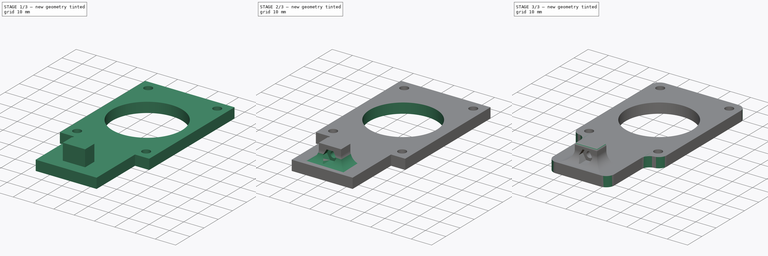
[diagram: build sequence overview — one tinted view per stage of 3, left to right]
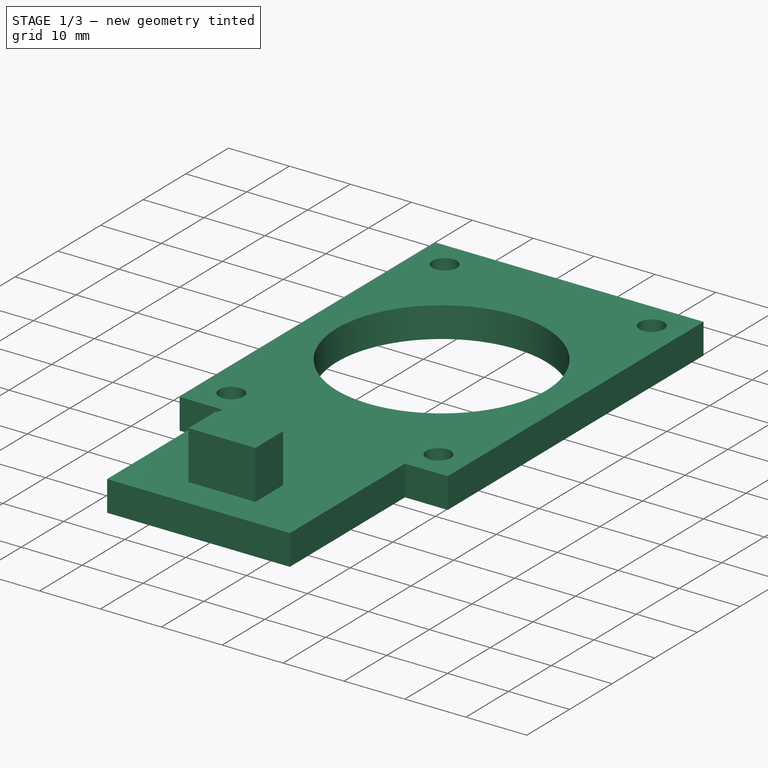
[diagram: stage 1 of 3 — iso view after this stage's code; geometry added in this stage tinted green]
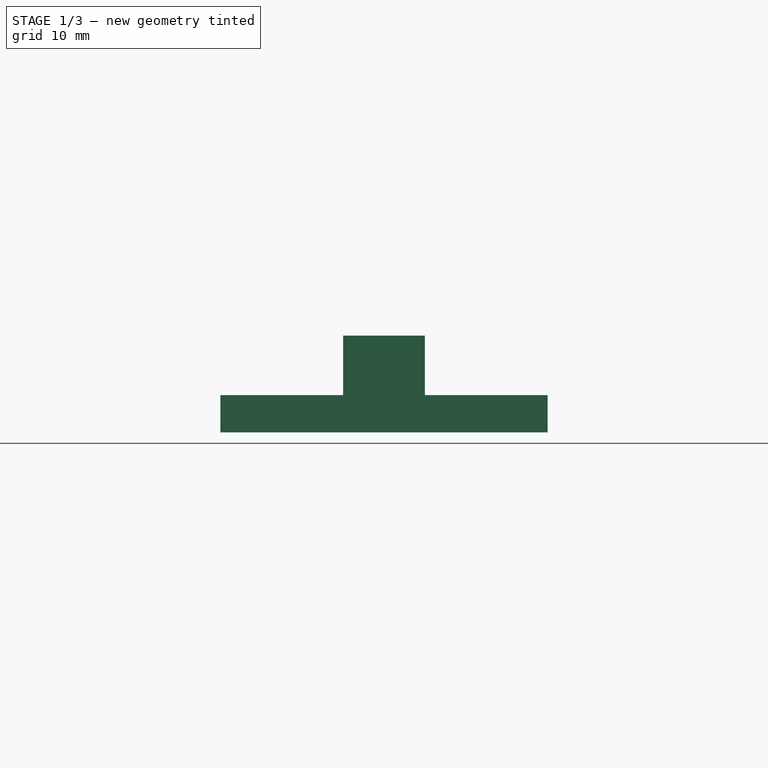
[diagram: stage 1 of 3 — front view after this stage's code; geometry added in this stage tinted green]
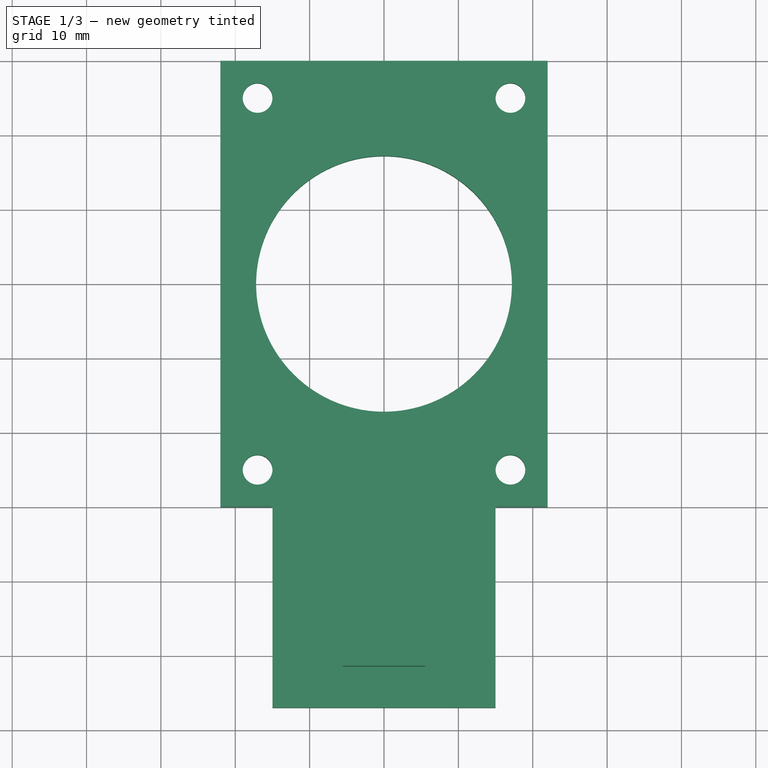
[diagram: stage 1 of 3 — top view after this stage's code; geometry added in this stage tinted green]
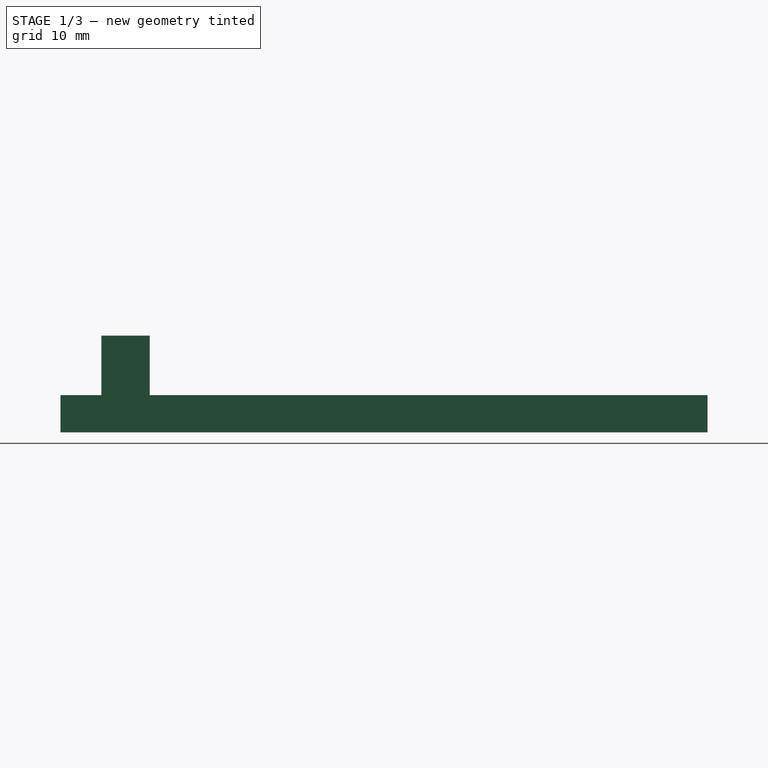
[diagram: stage 1 of 3 — right view after this stage's code; geometry added in this stage tinted green]
FCSTD DOCUMENT  (FreeCAD 0.14R3700 (Git))
Label: homing_sensor_holder
License: CC-BY 3.0
LicenseURL: http://creativecommons.org/licenses/by/3.0/
objects: Sketcher::SketchObject×4, PartDesign::Fillet×4, PartDesign::Pad×2, PartDesign::Pocket×2
note: 16 computed .brp shape members not serialized (recipe doc carries the construction recipe); baked Part::Feature solids carry a one-line shape summary decoded from their .brp

FEATURE [Sketcher::SketchObject] Sketch
  sketch-geometry (13):
    g0: LineSegment StartX=-22 StartY=30 StartZ=0 EndX=22 EndY=30 EndZ=0
    g1: LineSegment StartX=22 StartY=30 StartZ=0 EndX=22 EndY=-30 EndZ=0
    g2: LineSegment StartX=22 StartY=-30 StartZ=0 EndX=15 EndY=-30 EndZ=0
    g3: LineSegment StartX=15 StartY=-30 StartZ=0 EndX=15 EndY=-57 EndZ=0
    g4: LineSegment StartX=15 StartY=-57 StartZ=0 EndX=-15 EndY=-57 EndZ=0
    g5: LineSegment StartX=-15 StartY=-57 StartZ=0 EndX=-15 EndY=-30 EndZ=0
    g6: LineSegment StartX=-15 StartY=-30 StartZ=0 EndX=-22 EndY=-30 EndZ=0
    g7: LineSegment StartX=-22 StartY=-30 StartZ=0 EndX=-22 EndY=30 EndZ=0
    g8: Circle CenterX=0 CenterY=0 CenterZ=0 NormalX=0 NormalY=0 NormalZ=1 Radius=17.2
    g9: Circle CenterX=-17 CenterY=25 CenterZ=0 NormalX=0 NormalY=0 NormalZ=1 Radius=2
    g10: Circle CenterX=17 CenterY=25 CenterZ=0 NormalX=0 NormalY=0 NormalZ=1 Radius=2
    g11: Circle CenterX=-17 CenterY=-25 CenterZ=0 NormalX=0 NormalY=0 NormalZ=1 Radius=2
    g12: Circle CenterX=17 CenterY=-25 CenterZ=0 NormalX=0 NormalY=0 NormalZ=1 Radius=2
  constraints (35):
    c: Horizontal(g0)
    c: Coincident(g0,g1)
    c: Vertical(g1)
    c: Coincident(g1,g2)
    c: Horizontal(g2)
    c: Coincident(g2,g3)
    c: Vertical(g3)
    c: Coincident(g3,g4)
    c: Horizontal(g4)
    c: Coincident(g4,g5)
    c: Vertical(g5)
    c: Coincident(g5,g6)
    c: Horizontal(g6)
    c: Coincident(g6,g7)
    c: Coincident(g7,g0)
    c: Vertical(g7)
    c: Coincident(g8,g-1)
    c: Radius(g8) = 17.2
    c: Equal(g9,g10)
    c: Equal(g10,g11)
    c: Equal(g11,g12)
    c: Radius(g9) = 2
    c: Distance(g9,g10) = 34
    c: Symmetric(g10,g9,g-2)
    c: Distance(g10,g12) = 50
    c: Symmetric(g10,g12,g-1)
    c: Symmetric(g11,g12,g-2)
    c: DistanceY(g-1,g0) = 30
    c: DistanceY(g-1,g6) = -30
    c: Distance(g0) = 44
    c: Symmetric(g0,g0,g-2)
    c: Symmetric(g4,g3,g-2)
    c: Distance(g4) = 30
    c: DistanceY(g-1,g3) = -57
    c: Symmetric(g2,g5,g-2)
FEATURE [PartDesign::Pad] Pad
  Length = 5
  Length2 = 100
  Sketch = -> Sketch
  Type = 0
FEATURE [Sketcher::SketchObject] Sketch001
  Placement = pos=(0,0,5) rot=(0,0,1;0rad)
  Support = -> Pad [Face15]
  sketch-geometry (4):
    g0: LineSegment StartX=-5.5 StartY=-45 StartZ=0 EndX=5.5 EndY=-45 EndZ=0
    g1: LineSegment StartX=5.5 StartY=-45 StartZ=0 EndX=5.5 EndY=-51.5 EndZ=0
    g2: LineSegment StartX=5.5 StartY=-51.5 StartZ=0 EndX=-5.5 EndY=-51.5 EndZ=0
    g3: LineSegment StartX=-5.5 StartY=-51.5 StartZ=0 EndX=-5.5 EndY=-45 EndZ=0
  constraints (12):
    c: Coincident(g0,g1)
    c: Coincident(g1,g2)
    c: Coincident(g2,g3)
    c: Coincident(g3,g0)
    c: Horizontal(g0)
    c: Horizontal(g2)
    c: Vertical(g1)
    c: Vertical(g3)
    c: Distance(g3) = 6.5
    c: Distance(g0) = 11
    c: Symmetric(g0,g0,g-2)
    c: DistanceY(g-1,g0) = -45
FEATURE [PartDesign::Pad] Pad001
  Length = 8
  Length2 = 100
  Sketch = -> Sketch001
  Type = 0
FEATURE [Sketcher::SketchObject] Sketch002  label="M3HoleSk"
  Placement = pos=(-5.5,0,0) rot=(0.57735,-0.57735,-0.57735;2.0944rad)
  Support = -> Pad001 [Face16]
  sketch-geometry (1):
    g0: Circle CenterX=0 CenterY=8.2 CenterZ=0 NormalX=0 NormalY=0 NormalZ=1 Radius=1.5
  constraints (3):
    c: PointOnObject(g0,g-2)
    c: DistanceY(g-1,g0) = 8.2
    c: Radius(g0) = 1.5
FEATURE [PartDesign::Pocket] Pocket  label="M3HolePocket"
  Length = 5
  Sketch = -> Sketch002
  Type = 1
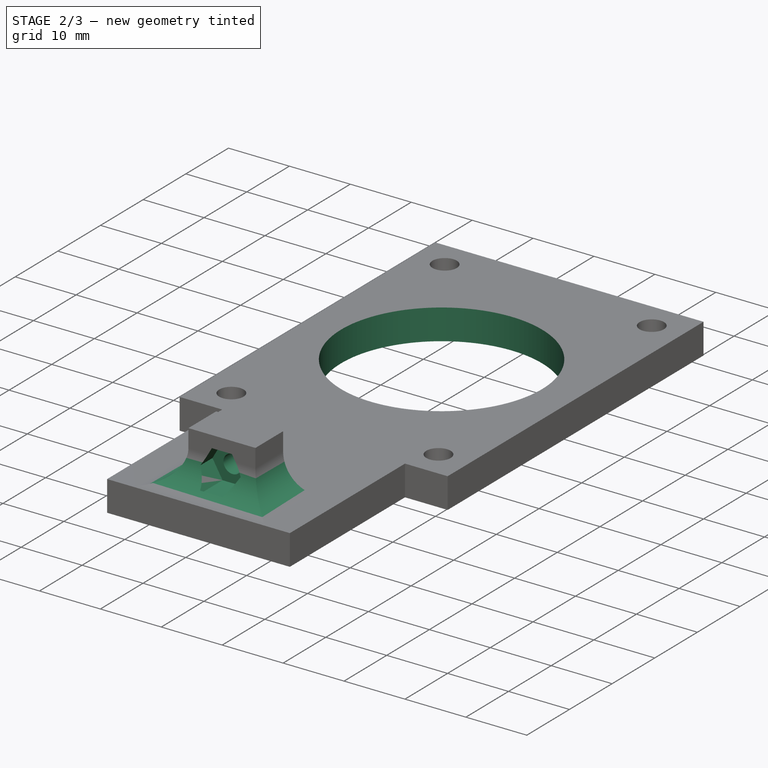
[diagram: stage 2 of 3 — iso view after this stage's code; geometry added in this stage tinted green]
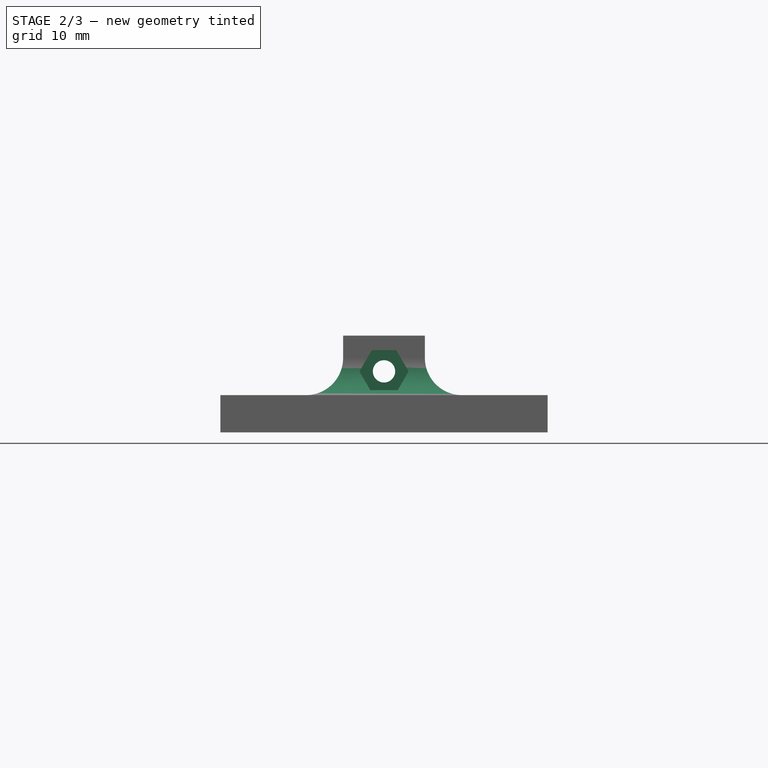
[diagram: stage 2 of 3 — front view after this stage's code; geometry added in this stage tinted green]
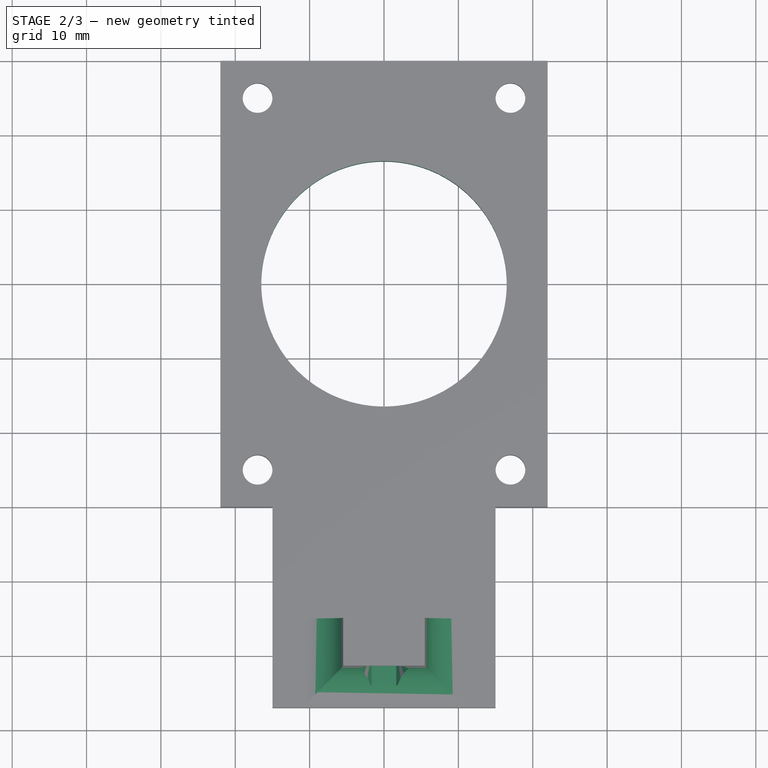
[diagram: stage 2 of 3 — top view after this stage's code; geometry added in this stage tinted green]
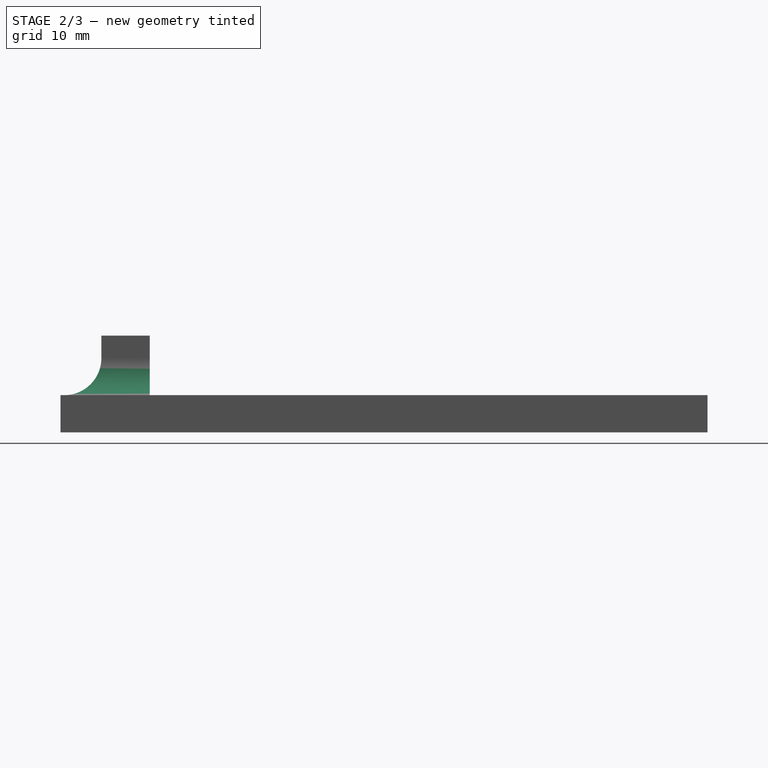
[diagram: stage 2 of 3 — right view after this stage's code; geometry added in this stage tinted green]
FEATURE [PartDesign::Fillet] Fillet
  Base = -> Pocket [Edge31,Edge30,Edge32]
  Radius = 5
FEATURE [Sketcher::SketchObject] Sketch003  label="M3NutSk"
  Placement = pos=(0,-51.5,0) rot=(1,0,0;1.5708rad)
  Support = -> Fillet [Face23]
  sketch-geometry (7):
    g0: LineSegment StartX=3.3 StartY=8.2 StartZ=0 EndX=1.65 EndY=11.0579 EndZ=0
    g1: LineSegment StartX=1.65 StartY=11.0579 StartZ=0 EndX=-1.65 EndY=11.0579 EndZ=0
    g2: LineSegment StartX=-1.65 StartY=11.0579 StartZ=0 EndX=-3.3 EndY=8.2 EndZ=0
    g3: LineSegment StartX=-3.3 StartY=8.2 StartZ=0 EndX=-1.65 EndY=5.34212 EndZ=0
    g4: LineSegment StartX=-1.65 StartY=5.34212 StartZ=0 EndX=1.65 EndY=5.34212 EndZ=0
    g5: LineSegment StartX=1.65 StartY=5.34212 StartZ=0 EndX=3.3 EndY=8.2 EndZ=0
    g6: Circle [constr] CenterX=0 CenterY=8.2 CenterZ=0 NormalX=0 NormalY=0 NormalZ=1 Radius=3.3
  constraints (18):
    c: Coincident(g0,g1)
    c: Coincident(g1,g2)
    c: Coincident(g2,g3)
    c: Coincident(g3,g4)
    c: Coincident(g4,g5)
    c: Coincident(g5,g0)
    c: Equal(g0, g1-g5) x5
    c: PointOnObject(g0,g6)
    c: PointOnObject(g1,g6)
    c: PointOnObject(g2,g6)
    c: PointOnObject(g3,g6)
    c: PointOnObject(g4,g6)
    c: PointOnObject(g5,g6)
    c: PointOnObject(g3,g-2)
    c: Perpendicular(g-2,g1)
    c: Radius(g6) = 3.3
    c: PointOnObject(g6,g-2)
    c: DistanceY(g-1,g6) = 8.2
FEATURE [PartDesign::Pocket] Pocket001
  Length = 5
  Midplane = true
  Sketch = -> Sketch003
  Type = 0
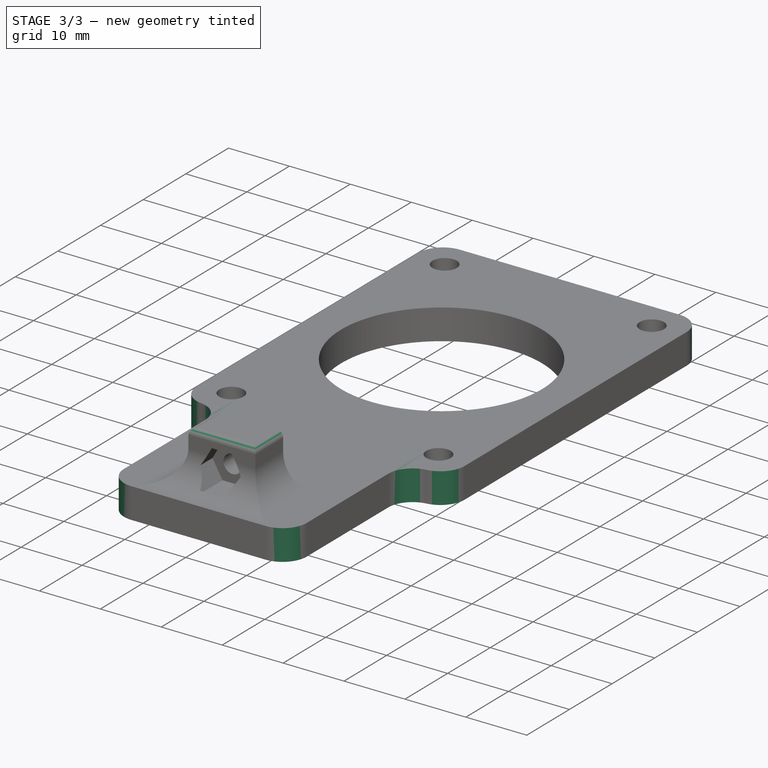
[diagram: stage 3 of 3 — iso view after this stage's code; geometry added in this stage tinted green]
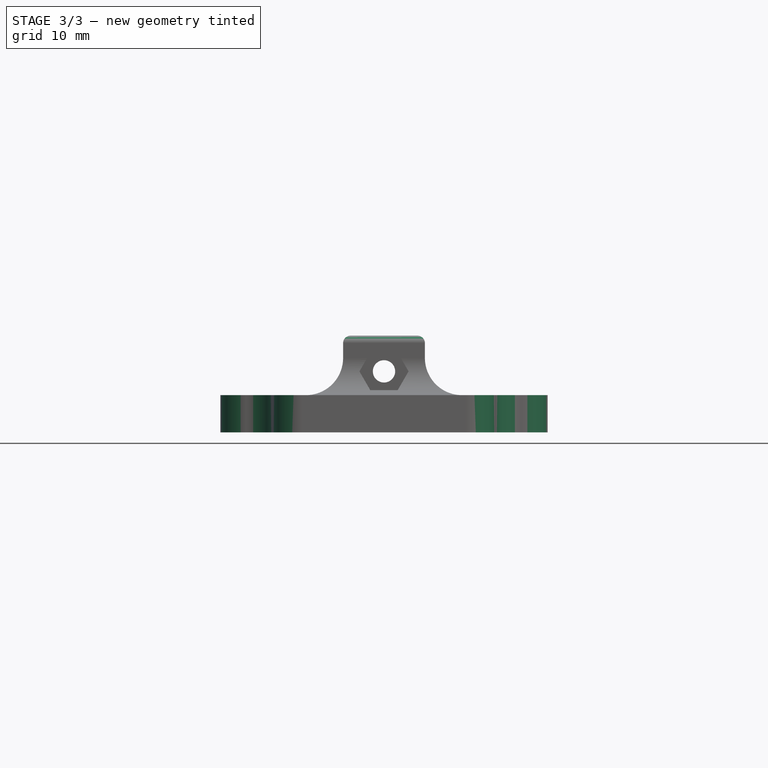
[diagram: stage 3 of 3 — front view after this stage's code; geometry added in this stage tinted green]
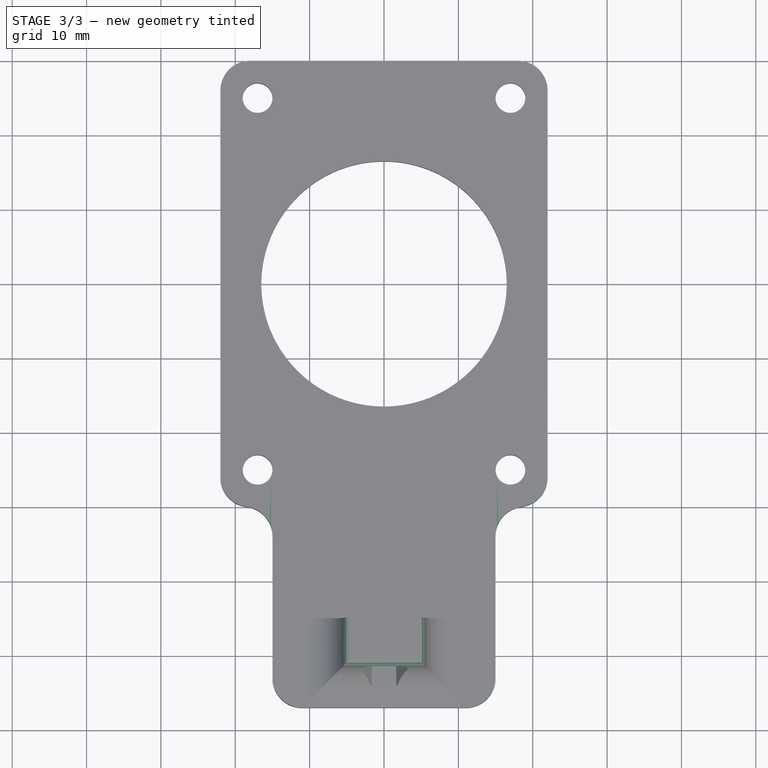
[diagram: stage 3 of 3 — top view after this stage's code; geometry added in this stage tinted green]
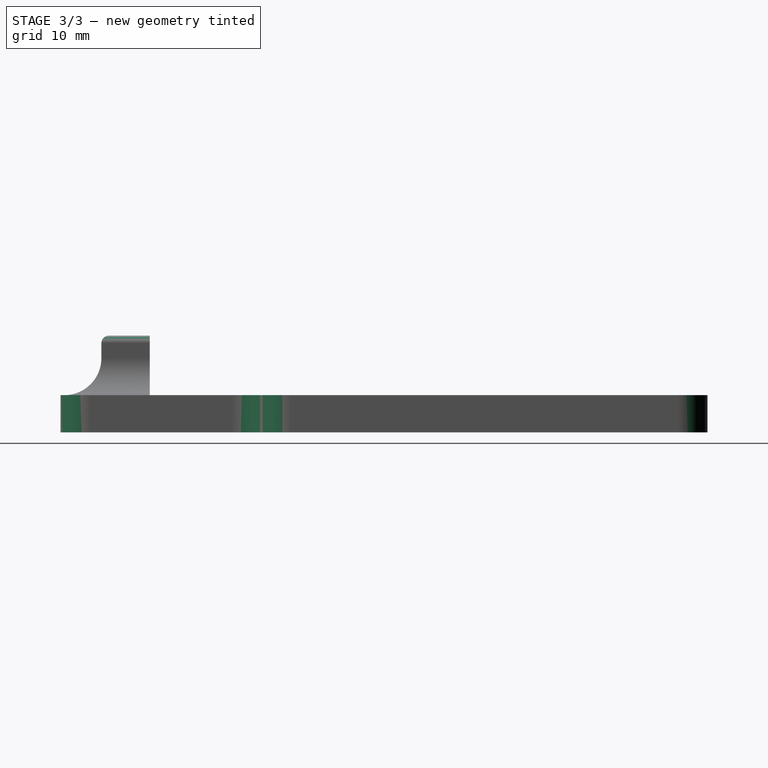
[diagram: stage 3 of 3 — right view after this stage's code; geometry added in this stage tinted green]
FEATURE [PartDesign::Fillet] Fillet001
  Base = -> Pocket001 [Edge40,Edge37,Edge38,Edge42]
  Radius = 4
FEATURE [PartDesign::Fillet] Fillet002
  Base = -> Fillet001 [Edge40,Edge43,Edge45,Edge42]
  Radius = 4
FEATURE [PartDesign::Fillet] Fillet003
  Base = -> Fillet002 [Edge83,Edge82,Edge84]
  Radius = 1
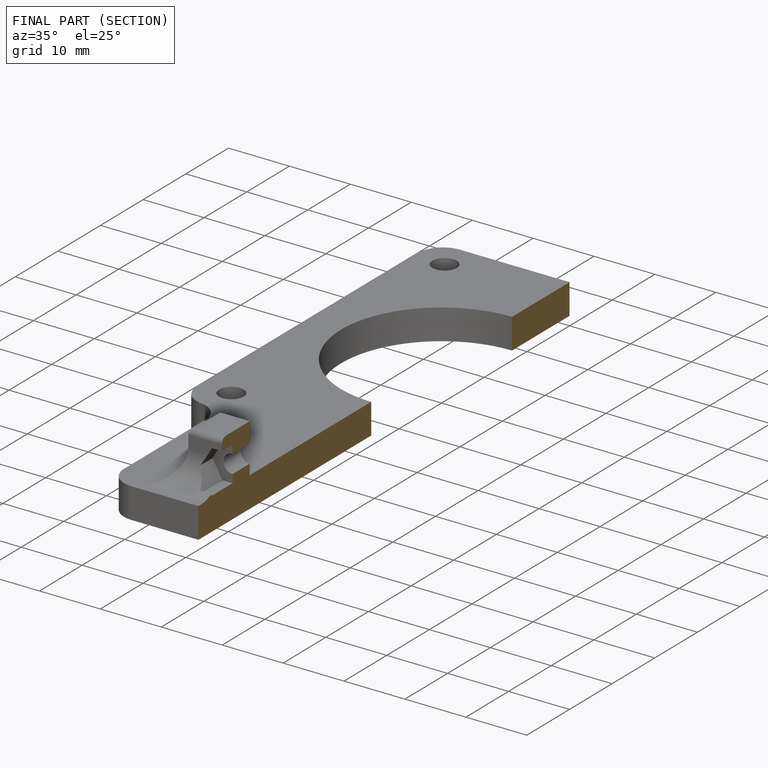
[diagram: finished part — half-section view (interior)]
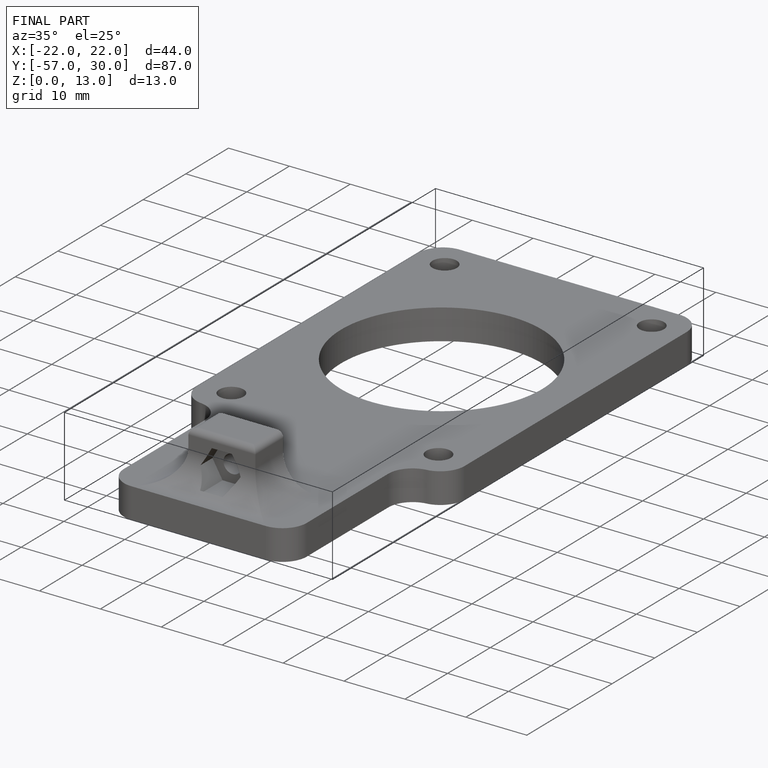
[diagram: finished part — iso view with bounding-box wireframe]
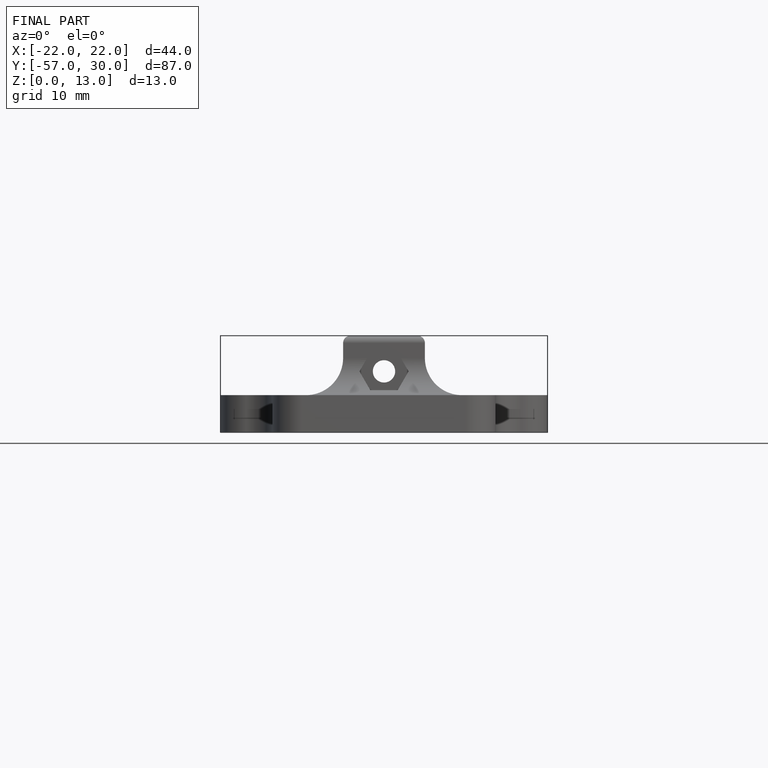
[diagram: finished part — front view with bounding-box wireframe]
